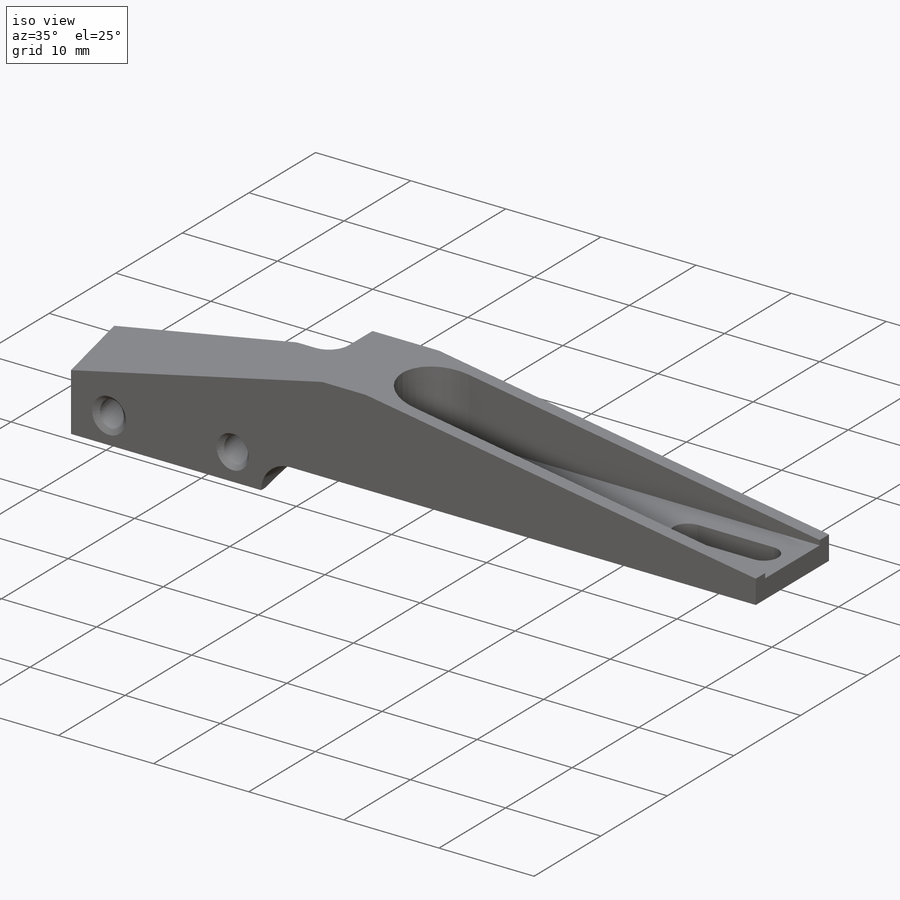
[diagram: iso view]
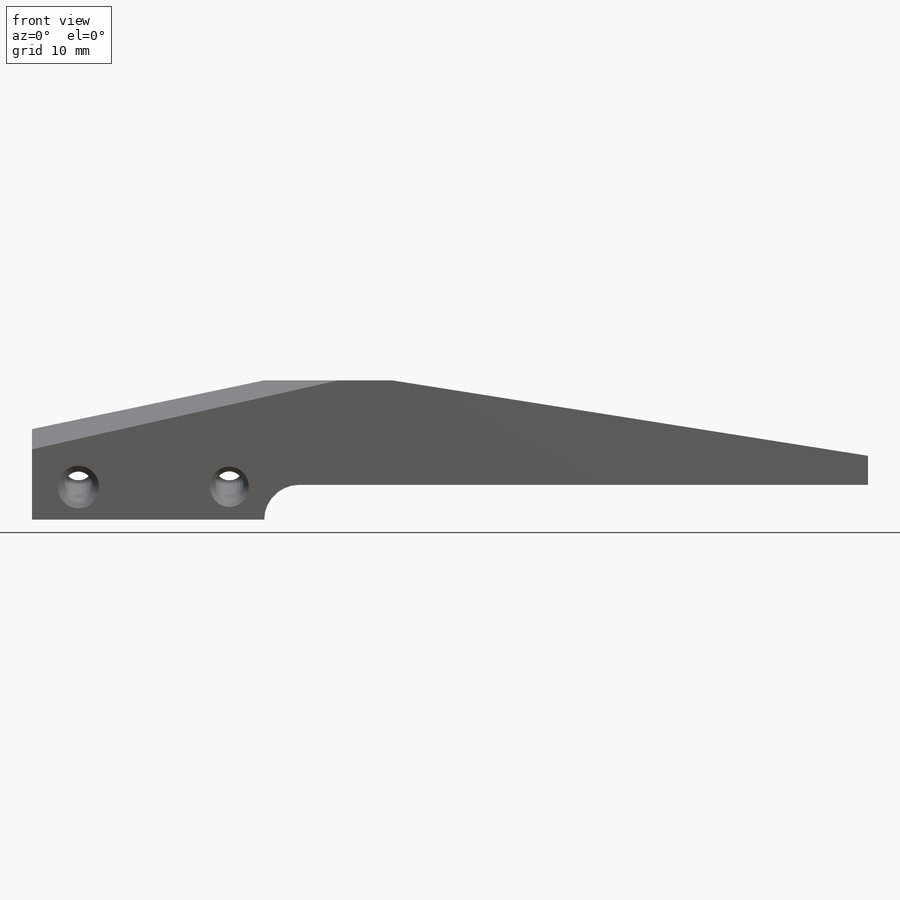
[diagram: front view]
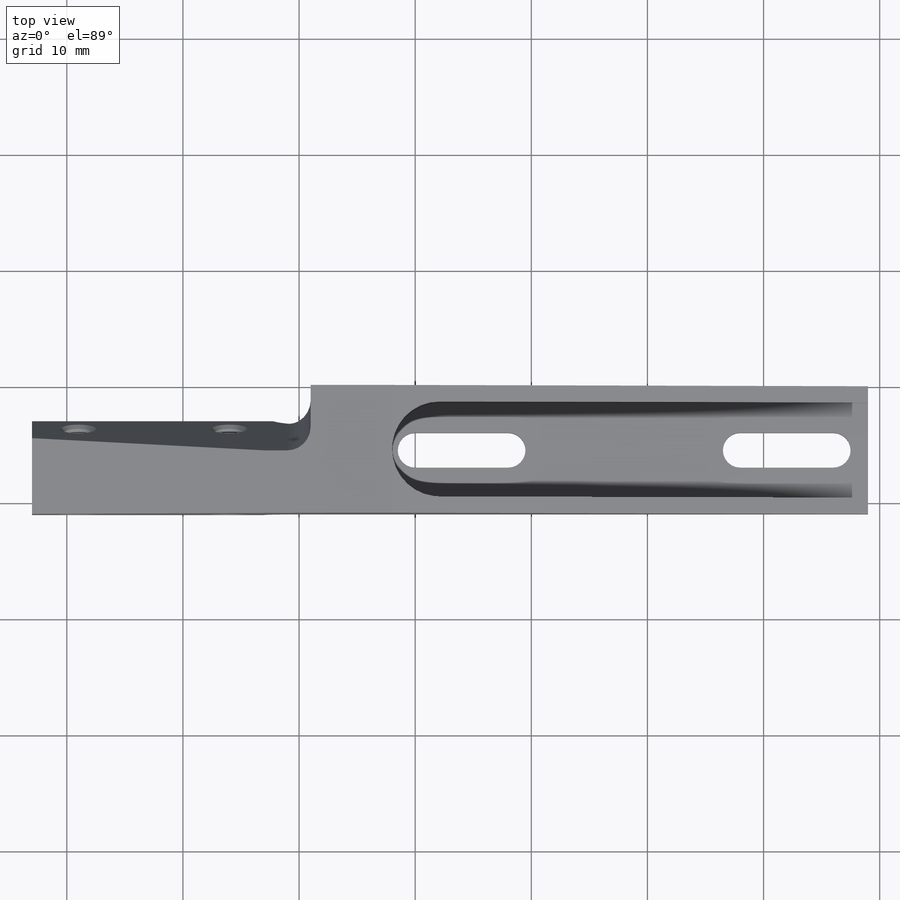
[diagram: top view]
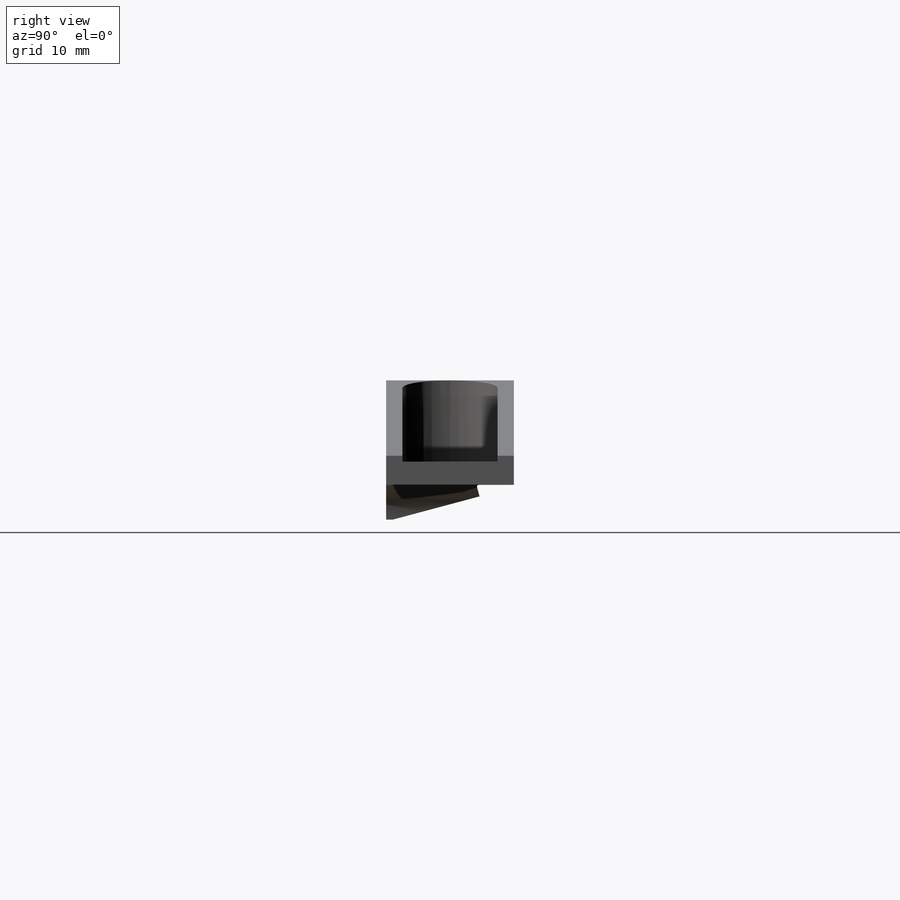
[diagram: right view]
SOLIDWORKS PART (.sldprt)
format: sldprt  version: not decoded by parser v0  size: 821,248 bytes
history: native  units: mm
features: sketch x11, cut_extrude x8, plane x2, chamfer x2, material x1, extrude x1, fillet x1 (+13 scaffold rows collapsed)
feature tree (39):
  scaffold x13  (default folders/planes/origin — collapsed)
  material  "6061 Alloy"
  sketch  "Sketch1"  dims[D5=3.0mm D1=2.5mm D2=72.0mm D3=23.0mm D4=3.0mm D6=31.0mm D7=9.0mm]
  extrude  "Extrude1"  Depth=18mm
  sketch  "Sketch2"  dims[D6=2.25mm D1=5.5mm D2=33.0mm D3=3.0mm D4=8.0mm D5=28.0mm D7=11.0mm D8=24.5mm]
  cut_extrude  "Cut-Extrude1"  [1 undecoded]
  plane  "Plane1"  Offset=2mm
  sketch  "Sketch3"  dims[D1=8.2mm D2=31.0mm]
  cut_extrude  "Cut-Extrude2"  [1 undecoded]
  sketch  "Sketch5"  dims[c1.D11=10.0mm c1.D1=~12.232876mm c2.D1=15.0deg c2.D2=27.2mm c2.D3=3.0mm c2.D4=27.5mm c2.D5=28.0mm c2.D6=6.7mm c3.D3=3.0mm c3.D7=3.5mm c3.D8=~0.71852mm c3.D4=27.5mm c4.D8=0.5mm c4.D9=~0.442063mm c4.D10=~2.956539mm c4.D12=33.0mm c4.D13=20.0mm]
  sketch  "Sketch4"  dims[D1=2.0mm]
  cut_extrude  "Cut-Extrude3"  Depth=26mm
  sketch  "Sketch6"  dims[D1=2.0mm D2=24.0mm]
  cut_extrude  "Cut-Extrude4"  [1 undecoded]
  sketch  "Sketch7"  dims[D1=25.0mm]
  plane  "Plane2"
  sketch  "Sketch8"  dims[D6=2.5mm D1=33.0mm D2=13.0mm D3=4.0mm D4=20.0mm D5=6.0mm]
  cut_extrude  "Cut-Extrude5"  [1 undecoded]
  chamfer  "Chamfer1"  Distance=0.3mm Angle=45deg
  sketch  "Sketch9"
  cut_extrude  "Cut-Extrude6"  Depth=25mm
  fillet  "Fillet1"  Radius=2mm
  sketch  "Sketch10"  dims[D1=7.0mm D2=30.0mm]
  cut_extrude  "Cut-Extrude7"  [1 undecoded]
  sketch  "Sketch11"  dims[D1=2.5mm D4=3.0mm D2=13.0mm D3=4.0mm]
  cut_extrude  "Cut-Extrude8"  [1 undecoded]
  chamfer  "Chamfer2"  Distance=0.3mm Angle=45deg
decode coverage: 16 of 23 modeling features carry decoded parameters
note: ~ marks probable driven/reference dimensions
note: 6 parameter values undecoded
summary: no parameter record found for 6 features
note: suppression state not decoded; provenance and decode notes live in map.json
